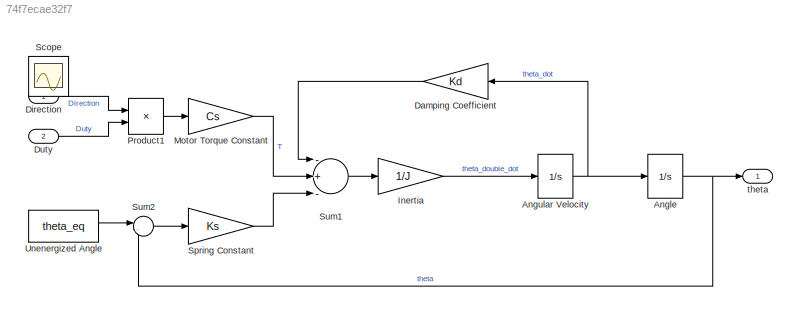
MODEL slx_74f7ecae32f7
KIND model
CONFIG AbsTol = auto
CONFIG EnableMultiTasking = on
CONFIG FixedStep = auto
CONFIG MaxStep = 0.1
CONFIG MinStep = auto
CONFIG PreLoadFcn = etc_plant_data;
CONFIG RelTol = 1e-3
CONFIG SampleTimeConstraint = Unconstrained
CONFIG Solver = VariableStepAuto
CONFIG SolverName = VariableStepAuto
CONFIG StartTime = 0.0
CONFIG StopTime = 20
BLOCK [Integrator] Angle
  AttributesFormatString = Initial condition: %<InitialCondition>\n%<LowerSaturationLimit> <= theta <= %<UpperSaturationLimit>
  InitialCondition = pi/6
  LimitOutput = on
  LowerSaturationLimit = 0
  Ports = [1, 1]
  UpperSaturationLimit = pi/2
BLOCK [Integrator] Angular Velocity
  AttributesFormatString = Initial condition: %<InitialCondition>
  Ports = [1, 1]
BLOCK [Gain] Damping Coefficient
  Gain = Kd
BLOCK [Inport] Direction
  IconDisplay = Port number
BLOCK [Inport] Duty
  IconDisplay = Port number
  Port = 2
BLOCK [Gain] Inertia
  Gain = 1/J
BLOCK [Gain] Motor Torque Constant
  Gain = Cs
BLOCK [Product] Product1
  InputSameDT = off
  Ports = [2, 1]
  RndMeth = Floor
BLOCK [Scope] Scope
  Floating = off
  IOType = viewer
  NumInputPorts = 1
  Ports = []
  ScopeSpecificationString = Simulink.scopes.TimeScopeBlockCfg('CurrentConfiguration', extmgr.ConfigurationSet(extmgr.Configuration('Core','General UI',true),extmgr.Configuration('Core','Source UI',true),extmgr.Configuration('Sources','WiredSimulink',true,'DataLoggingMaxPoints','7500','DataLoggingLimitDataPoints',true,'DataLoggingSaveFormat','Array','DataLoggingDecimation','1','DataLoggingDecimateData',true),extmgr.Configurat...<+2031ch>
BLOCK [Gain] Spring Constant
  Gain = Ks
BLOCK [Sum] Sum1
  InputSameDT = off
  Inputs = -+-
  OutDataTypeStr = Inherit: Inherit via internal rule
  Ports = [3, 1]
BLOCK [Sum] Sum2
  IconShape = round
  InputSameDT = off
  Inputs = |-+
  OutDataTypeStr = Inherit: Inherit via internal rule
  Ports = [2, 1]
BLOCK [Constant] Unenergized Angle
  Value = theta_eq
BLOCK [Outport] theta
  IconDisplay = Port number
NET Angle:1 -> Sum2:2, theta:1
NET Angular Velocity:1 -> Angle:1, Damping Coefficient:1
LINE Damping Coefficient:1 -> Sum1:1
LINE Direction:1 -> Product1:1
LINE Duty:1 -> Product1:2
LINE Inertia:1 -> Angular Velocity:1
LINE Motor Torque Constant:1 -> Sum1:2
LINE Product1:1 -> Motor Torque Constant:1
LINE Spring Constant:1 -> Sum1:3
LINE Sum1:1 -> Inertia:1
LINE Sum2:1 -> Spring Constant:1
LINE Unenergized Angle:1 -> Sum2:1
note: NET lines group one-source signal fan-out (src -> all destinations, sorted); 1:1 wires keep LINE
